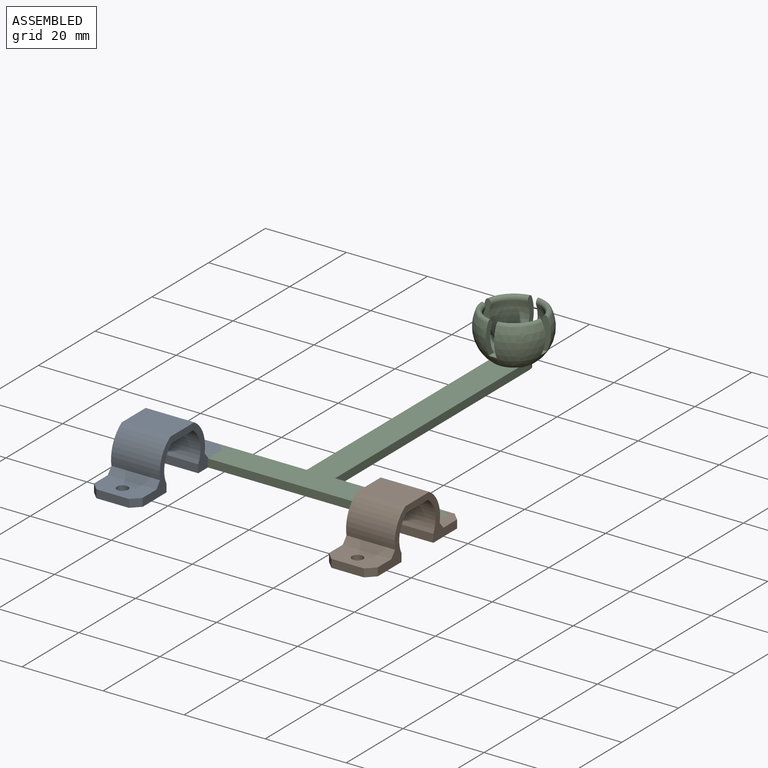
[diagram: assembled view]
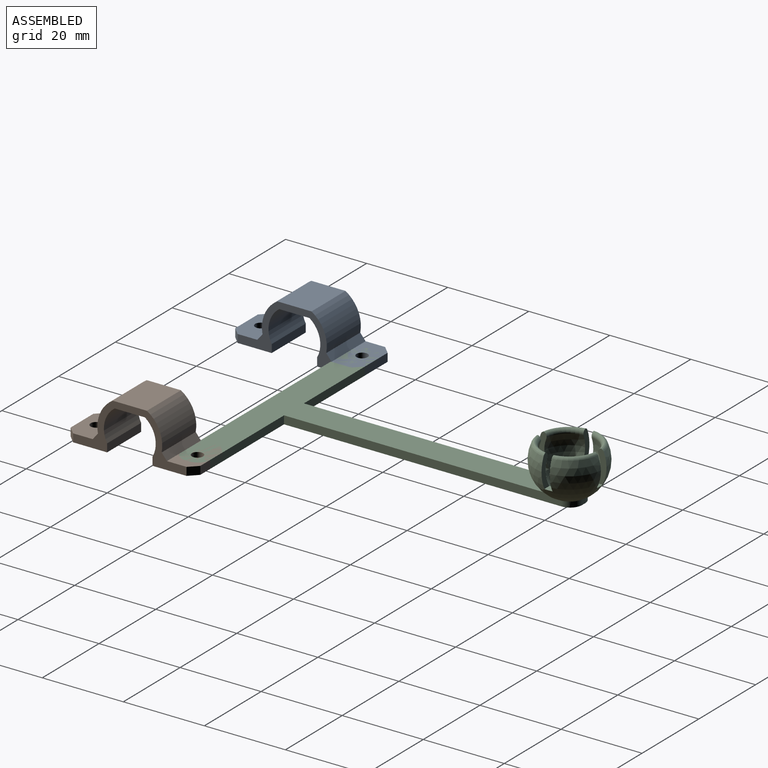
[diagram: assembled view, second angle]
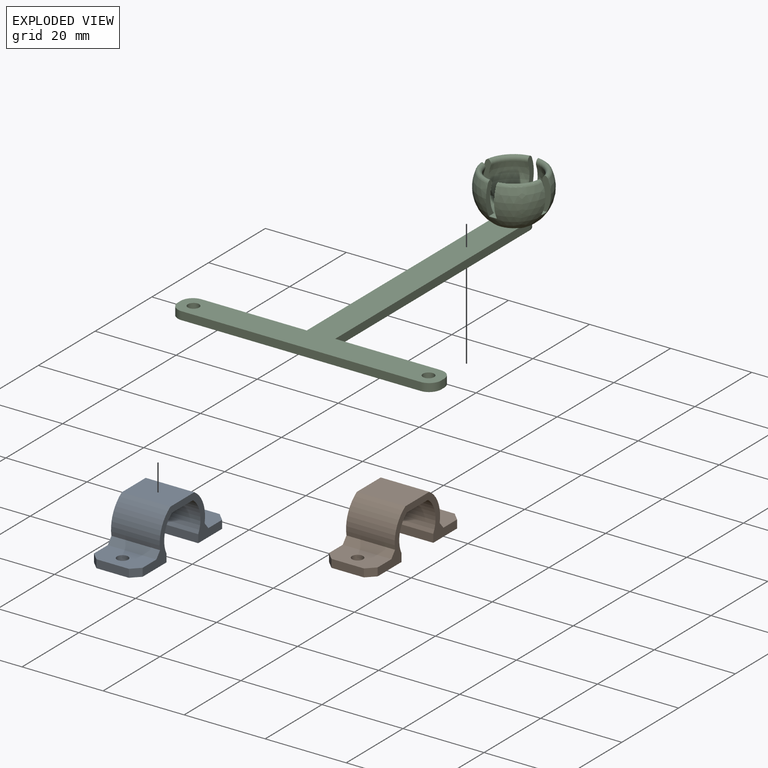
[diagram: exploded view]
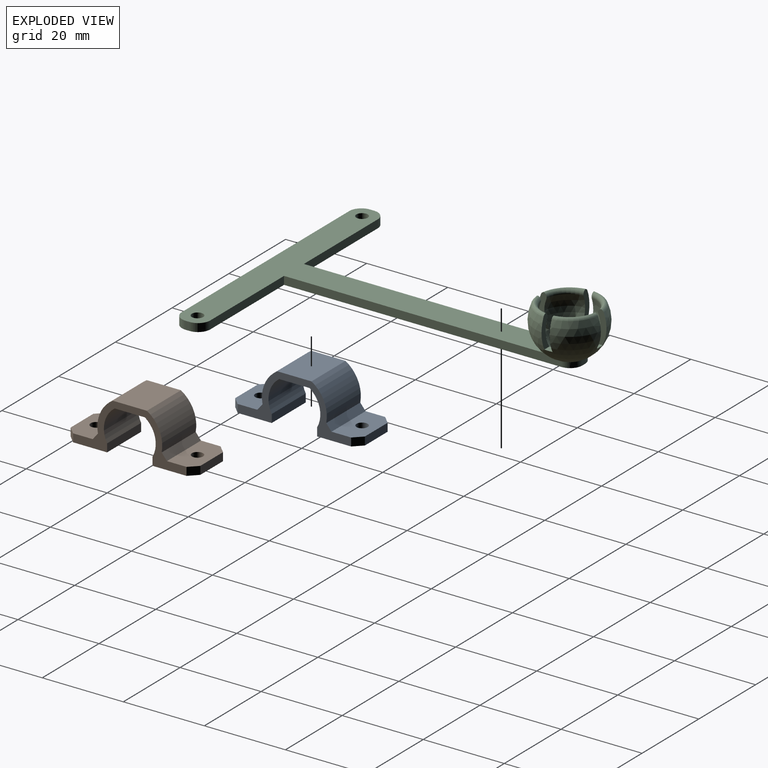
[diagram: exploded view, second angle]
ASSEMBLY  parts=3 mates=2
PART A: 24 faces, bbox 12x32x11.9 mm
  f0: plane 8x2mm, normal (0,1,0), area 16mm2, adj f1,f7,f11,f12
  f1: plane 12x6.84mm, normal (0,0,1), area 72.2mm2, adj f0,f8,f9,f10,f11,f12,f23
  f2: cylinder r=8mm len=12mm, axis (-1,0,0), area 115.9mm2, adj f3,f8,f9,f23
  f3: plane 12x8.43mm, normal (0,0,1), area 101.1mm2, adj f2,f8,f9,f15
  f4: plane 12x7.46mm, normal (0,0,-1), area 89.5mm2, adj f5,f8,f9,f16
  f5: cylinder r=6.4mm len=12mm, axis (-1,0,0), area 111.7mm2, adj f4,f6,f8,f9
  f6: plane 12x2mm, normal (0,-1,0), area 24mm2, adj f5,f7,f8,f9
  f7: plane 12x10.4mm, normal (0,0,-1), area 114.9mm2, adj f0,f6,f8,f9,f10,f11,f12
  f8: plane 28x11.9mm, normal (1,0,0), area 82mm2, adj f1,f2,f3,f4,f5,f6,f7,f12
  f9: plane 28x11.9mm, normal (-1,0,0), area 82mm2, adj f1,f2,f3,f4,f5,f6,f7,f11
  f10: cylinder r=1.38mm len=2.75mm, axis (0,0,1), area 17.3mm2, adj f1,f7
  f11: plane 2x2mm, normal (-0.71,0.71,0), area 5.7mm2, adj f0,f1,f7,f9
  f12: plane 2x2mm, normal (0.71,0.71,0), area 5.7mm2, adj f0,f1,f7,f8
  f13: plane 8x2mm, normal (0,-1,0), area 16mm2, adj f14,f18,f20,f21
  f14: plane 12x6.84mm, normal (0,0,1), area 72.2mm2, adj f8,f9,f13,f19,f20,f21,f22
  f15: cylinder r=8mm len=12mm, axis (-1,0,0), area 115.9mm2, adj f3,f8,f9,f22
  f16: cylinder r=6.4mm len=12mm, axis (-1,0,0), area 111.7mm2, adj f4,f8,f9,f17
  f17: plane 12x2mm, normal (0,1,0), area 24mm2, adj f8,f9,f16,f18
  f18: plane 12x10.4mm, normal (0,0,-1), area 114.9mm2, adj f8,f9,f13,f17,f19,f20,f21
  f19: cylinder r=1.38mm len=2.75mm, axis (0,0,1), area 17.3mm2, adj f14,f18
  f20: plane 2x2mm, normal (-0.71,-0.71,0), area 5.7mm2, adj f9,f13,f14,f18
  f21: plane 2x2mm, normal (0.71,-0.71,0), area 5.7mm2, adj f8,f13,f14,f18
  f22: plane 12x1.58mm, normal (0,-0.77,0.64), area 24.6mm2, adj f8,f9,f14,f15
  f23: plane 12x1.58mm, normal (0,0.77,0.64), area 24.6mm2, adj f1,f2,f8,f9
PART B: same geometry as A
PART C: 40 faces, bbox 65x83.5x13 mm
  f0: sphere r=8.5mm, area 519.4mm2, adj f2,f3,f7,f10,f13,f17,f20,f21
  f1: sphere r=7mm, area 367.5mm2, adj f20,f21,f22,f23,f24,f25,f26,f27
  f2: plane 71.68x65mm, normal (0,0,1), area 880.5mm2, adj f0,f3,f4,f5,f6,f8,f11,f12
  f3: plane 68.5x2mm, normal (-1,0,0), area 135mm2, adj f0,f2,f4,f9,f10
  f4: plane 26x2mm, normal (0,1,0), area 52mm2, adj f2,f3,f9,f11
  f5: plane 2x1mm, normal (-1,0,0), area 2mm2, adj f2,f9,f11,f12
  f6: plane 59x2mm, normal (0,-1,0), area 118mm2, adj f2,f9,f12,f19
  f7: plane 1.27x1mm, normal (0,1,0), area 1.3mm2, adj f0,f9,f10,f17
  f8: cylinder r=1.4mm len=2.8mm, axis (0,0,1), area 17.6mm2, adj f2,f9
  f9: plane 78.5x65mm, normal (0,0,-1), area 931.6mm2, adj f3,f4,f5,f6,f7,f8,f10,f11
  f10: cylinder r=3mm len=3mm, axis (0,0,-1), area 6.2mm2, adj f0,f3,f7,f9
  f11: cylinder r=3mm len=3mm, axis (0,0,1), area 9.4mm2, adj f2,f4,f5,f9
  f12: cylinder r=3mm len=3mm, axis (0,0,1), area 9.4mm2, adj f2,f5,f6,f9
  f13: plane 68.5x2mm, normal (1,0,0), area 135mm2, adj f0,f2,f9,f14,f17
  f14: plane 26x2mm, normal (0,1,0), area 52mm2, adj f2,f9,f13,f18
  f15: plane 2x1mm, normal (1,0,0), area 2mm2, adj f2,f9,f18,f19
  f16: cylinder r=1.4mm len=2.8mm, axis (0,0,1), area 17.6mm2, adj f2,f9
  f17: cylinder r=3mm len=3mm, axis (0,0,-1), area 6.2mm2, adj f0,f7,f9,f13
  f18: cylinder r=3mm len=3mm, axis (0,0,1), area 9.4mm2, adj f2,f9,f14,f15
  f19: cylinder r=3mm len=3mm, axis (0,0,1), area 9.4mm2, adj f2,f6,f9,f15
  f20: plane 2x1.84mm, normal (0,0,1), area 3.5mm2, adj f0,f1,f21,f22
  f21: plane 7.98x2.8mm, normal (0,-1,0), area 12.1mm2, adj f0,f1,f20,f38,f39
  f22: plane 7.98x2.8mm, normal (0,1,0), area 12.1mm2, adj f0,f1,f20,f32,f33
  f23: plane 2x1.84mm, normal (0,0,1), area 3.5mm2, adj f0,f1,f24,f25
  f24: plane 7.98x2.8mm, normal (1,0,0), area 12.1mm2, adj f0,f1,f23,f36,f37
  f25: plane 7.98x2.8mm, normal (-1,0,0), area 12.1mm2, adj f0,f1,f23,f38,f39
  f26: plane 2x1.84mm, normal (0,0,1), area 3.5mm2, adj f0,f1,f27,f28
  f27: plane 7.98x2.8mm, normal (0,1,0), area 12.1mm2, adj f0,f1,f26,f34,f35
  f28: plane 7.98x2.8mm, normal (0,-1,0), area 12.1mm2, adj f0,f1,f26,f36,f37
  f29: plane 7.98x2.8mm, normal (-1,0,0), area 12.1mm2, adj f0,f1,f31,f32,f33
  f30: plane 7.98x2.8mm, normal (1,0,0), area 12.1mm2, adj f0,f1,f31,f34,f35
  f31: plane 2x1.84mm, normal (0,0,1), area 3.5mm2, adj f0,f1,f29,f30
  f32: torus R=7.42mm, axis (0,0,-1), area 14.1mm2, adj f1,f22,f29,f33
  f33: torus R=6.87mm, axis (0,0,-1), area 8.6mm2, adj f0,f22,f29,f32
  f34: torus R=7.42mm, axis (0,0,-1), area 14.1mm2, adj f1,f27,f30,f35
  f35: torus R=6.87mm, axis (0,0,-1), area 8.6mm2, adj f0,f27,f30,f34
  f36: torus R=7.42mm, axis (0,0,-1), area 14.1mm2, adj f1,f24,f28,f37
  f37: torus R=6.87mm, axis (0,0,-1), area 8.6mm2, adj f0,f24,f28,f36
  f38: torus R=7.42mm, axis (0,0,-1), area 14.1mm2, adj f1,f21,f25,f39
  f39: torus R=6.87mm, axis (0,0,-1), area 8.6mm2, adj f0,f21,f25,f38
PLACE A t=(-26.8,-22.36,-47.23)mm
PLACE B t=(31.2,-22.36,-47.23)mm
PLACE C t=(2.2,61.64,-43.33)mm
MATE planar B.f10 <-> C.f16  axis (0,0,1) through (31.2,-9.86,-50.33)mm
MATE planar A.f10 <-> C.f8  axis (0,0,1) through (-26.8,-9.86,-50.33)mm
